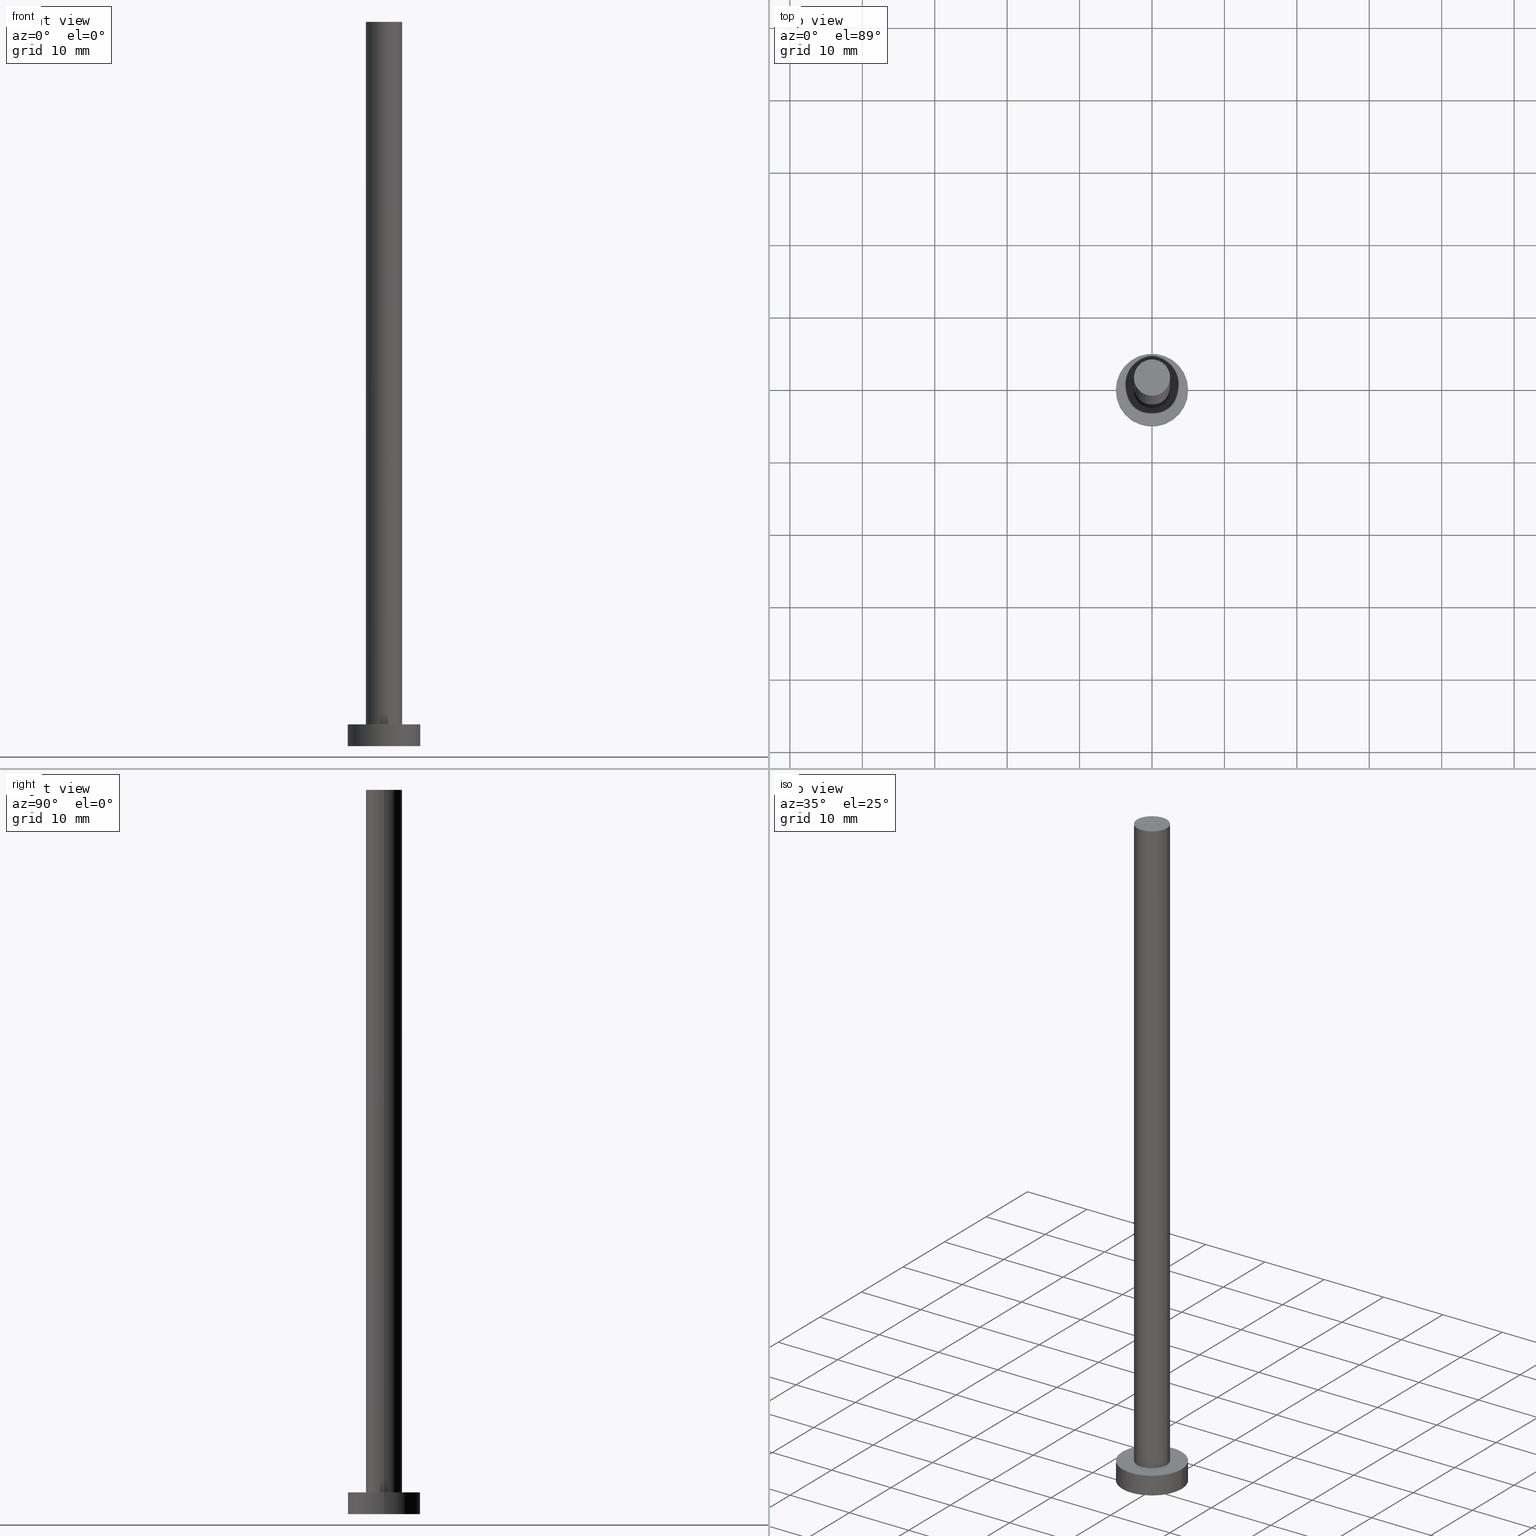
[diagram: canonical four-view strip — front | top / right | iso, engineering-drawing reading convention]
A machine part, canonical four-view strip (front | top / right | iso — engineering-drawing reading convention). The complete STEP part file that produces these views, byte-faithful:
ISO-10303-21;
HEADER;
FILE_DESCRIPTION (( 'STEP AP203' ),
    '1' );
FILE_NAME ('2ddc.STEP',
    '2023-02-12T12:31:39',
    ( '' ),
    ( '' ),
    'SwSTEP 2.0',
    'SolidWorks 2019',
    '' );
FILE_SCHEMA (( 'CONFIG_CONTROL_DESIGN' ));
ENDSEC;

DATA;
#1 =( LENGTH_UNIT ( ) NAMED_UNIT ( * ) SI_UNIT ( .MILLI., .METRE. ) );
#2 = DIRECTION ( 'NONE',  ( 0.000000000000000000, 0.000000000000000000, 1.000000000000000000 ) ) ;
#3 = CYLINDRICAL_SURFACE ( 'NONE', #50, 2.500000000000000000 ) ;
#4 = PERSON_AND_ORGANIZATION ( #63, #224 ) ;
#5 = AXIS2_PLACEMENT_3D ( 'NONE', #132, #152, #153 ) ;
#6 = CC_DESIGN_PERSON_AND_ORGANIZATION_ASSIGNMENT ( #79, #237, ( #104 ) ) ;
#7 = ORIENTED_EDGE ( 'NONE', *, *, #60, .F. ) ;
#8 = VERTEX_POINT ( 'NONE', #151 ) ;
#9 = APPROVAL_PERSON_ORGANIZATION ( #4, #133, #168 ) ;
#10 = ORIENTED_EDGE ( 'NONE', *, *, #115, .T. ) ;
#11 = DIRECTION ( 'NONE',  ( -0.000000000000000000, -0.000000000000000000, -1.000000000000000000 ) ) ;
#12 = VERTEX_POINT ( 'NONE', #169 ) ;
#13 = CC_DESIGN_APPROVAL ( #181, ( #70 ) ) ;
#14 = EDGE_CURVE ( 'NONE', #107, #226, #69, .T. ) ;
#15 = EDGE_LOOP ( 'NONE', ( #202, #206 ) ) ;
#16 = CC_DESIGN_APPROVAL ( #133, ( #104 ) ) ;
#17 = MECHANICAL_CONTEXT ( 'NONE', #212, 'mechanical' ) ;
#18 = APPROVAL_STATUS ( 'not_yet_approved' ) ;
#19 = CARTESIAN_POINT ( 'NONE',  ( 0.000000000000000000, 0.000000000000000000, 3.000000000000000000 ) ) ;
#20 = FACE_BOUND ( 'NONE', #219, .T. ) ;
#21 = DIRECTION ( 'NONE',  ( 0.000000000000000000, 0.000000000000000000, 1.000000000000000000 ) ) ;
#22 = DIRECTION ( 'NONE',  ( 1.000000000000000000, 0.000000000000000000, -0.000000000000000000 ) ) ;
#23 = ORIENTED_EDGE ( 'NONE', *, *, #91, .F. ) ;
#24 = CIRCLE ( 'NONE', #5, 2.500000000000000000 ) ;
#25 = DIRECTION ( 'NONE',  ( 0.000000000000000000, 0.000000000000000000, 1.000000000000000000 ) ) ;
#26 = EDGE_LOOP ( 'NONE', ( #239, #154 ) ) ;
#27 =( NAMED_UNIT ( * ) PLANE_ANGLE_UNIT ( ) SI_UNIT ( $, .RADIAN. ) );
#28 = AXIS2_PLACEMENT_3D ( 'NONE', #148, #25, #110 ) ;
#29 = CARTESIAN_POINT ( 'NONE',  ( 2.500000000000000000, 3.061616997868382648E-16, 100.0000000000000000 ) ) ;
#30 = ORIENTED_EDGE ( 'NONE', *, *, #232, .T. ) ;
#31 = DIRECTION ( 'NONE',  ( -0.000000000000000000, -0.000000000000000000, -1.000000000000000000 ) ) ;
#32 = CARTESIAN_POINT ( 'NONE',  ( 2.500000000000000000, 3.061616997868382648E-16, 100.0000000000000000 ) ) ;
#33 = EDGE_CURVE ( 'NONE', #75, #72, #71, .T. ) ;
#34 = APPLICATION_PROTOCOL_DEFINITION ( 'international standard', 'config_control_design', 1994, #49 ) ;
#35 = CALENDAR_DATE ( 2023, 12, 2 ) ;
#36 = CC_DESIGN_PERSON_AND_ORGANIZATION_ASSIGNMENT ( #184, #254, ( #104 ) ) ;
#37 = CARTESIAN_POINT ( 'NONE',  ( 0.000000000000000000, 0.000000000000000000, 100.0000000000000000 ) ) ;
#38 = CC_DESIGN_SECURITY_CLASSIFICATION ( #70, ( #104 ) ) ;
#39 = PERSON_AND_ORGANIZATION ( #63, #224 ) ;
#40 = CALENDAR_DATE ( 2023, 12, 2 ) ;
#41 = VECTOR ( 'NONE', #11, 1000.000000000000000 ) ;
#42 = PLANE ( 'NONE',  #28 ) ;
#43 = ORIENTED_EDGE ( 'NONE', *, *, #77, .F. ) ;
#44 = VECTOR ( 'NONE', #211, 1000.000000000000000 ) ;
#45 = AXIS2_PLACEMENT_3D ( 'NONE', #131, #221, #85 ) ;
#46 = CARTESIAN_POINT ( 'NONE',  ( -5.000000000000000000, 0.000000000000000000, 3.000000000000000000 ) ) ;
#47 = EDGE_CURVE ( 'NONE', #177, #72, #64, .T. ) ;
#48 = ADVANCED_BREP_SHAPE_REPRESENTATION ( '2ddc', ( #209, #243 ), #134 ) ;
#49 = APPLICATION_CONTEXT ( 'configuration controlled 3d designs of mechanical parts and assemblies' ) ;
#50 = AXIS2_PLACEMENT_3D ( 'NONE', #37, #54, #142 ) ;
#51 = EDGE_LOOP ( 'NONE', ( #43, #160, #170, #109 ) ) ;
#52 = APPROVAL_DATE_TIME ( #97, #66 ) ;
#53 = CARTESIAN_POINT ( 'NONE',  ( 5.000000000000000000, 6.123233995736766282E-16, 3.000000000000000000 ) ) ;
#54 = DIRECTION ( 'NONE',  ( -0.000000000000000000, -0.000000000000000000, -1.000000000000000000 ) ) ;
#55 = DATE_AND_TIME ( #127, #138 ) ;
#56 = FACE_OUTER_BOUND ( 'NONE', #201, .T. ) ;
#57 = PERSON_AND_ORGANIZATION_ROLE ( 'classification_officer' ) ;
#58 = ADVANCED_FACE ( 'NONE', ( #140 ), #93, .T. ) ;
#59 = ORIENTED_EDGE ( 'NONE', *, *, #47, .F. ) ;
#60 = EDGE_CURVE ( 'NONE', #12, #177, #95, .T. ) ;
#61 = ORIENTED_EDGE ( 'NONE', *, *, #33, .T. ) ;
#62 = CARTESIAN_POINT ( 'NONE',  ( -5.000000000000000000, 0.000000000000000000, 0.000000000000000000 ) ) ;
#63 = PERSON ( 'NEUR�EN�', 'NEUR�EN�', 'NEUR�EN�', ('NEUR�EN�'), ('NEUR�EN�'), ('NEUR�EN�') ) ;
#64 = CIRCLE ( 'NONE', #186, 2.500000000000000000 ) ;
#65 = APPROVAL_ROLE ( '' ) ;
#66 = APPROVAL ( #18, 'NEUR�EN�' ) ;
#67 = ORIENTED_EDGE ( 'NONE', *, *, #60, .T. ) ;
#68 = AXIS2_PLACEMENT_3D ( 'NONE', #214, #102, #123 ) ;
#69 = LINE ( 'NONE', #46, #44 ) ;
#70 = SECURITY_CLASSIFICATION ( '', '', #234 ) ;
#71 = LINE ( 'NONE', #29, #41 ) ;
#72 = VERTEX_POINT ( 'NONE', #225 ) ;
#73 = PERSON_AND_ORGANIZATION_ROLE ( 'design_owner' ) ;
#74 = DIRECTION ( 'NONE',  ( 0.000000000000000000, 0.000000000000000000, 1.000000000000000000 ) ) ;
#75 = VERTEX_POINT ( 'NONE', #32 ) ;
#76 = LOCAL_TIME ( 13, 31, 39.00000000000000000, #198 ) ;
#77 = EDGE_CURVE ( 'NONE', #157, #107, #84, .T. ) ;
#78 = AXIS2_PLACEMENT_3D ( 'NONE', #129, #126, #231 ) ;
#79 = PERSON_AND_ORGANIZATION ( #63, #224 ) ;
#80 = APPROVAL_PERSON_ORGANIZATION ( #94, #66, #139 ) ;
#81 = CYLINDRICAL_SURFACE ( 'NONE', #187, 2.500000000000000000 ) ;
#82 = DIRECTION ( 'NONE',  ( 1.000000000000000000, 0.000000000000000000, 0.000000000000000000 ) ) ;
#83 = COORDINATED_UNIVERSAL_TIME_OFFSET ( 1, 0, .AHEAD. ) ;
#84 = CIRCLE ( 'NONE', #101, 5.000000000000000000 ) ;
#85 = DIRECTION ( 'NONE',  ( 1.000000000000000000, 0.000000000000000000, 0.000000000000000000 ) ) ;
#86 = ORIENTED_EDGE ( 'NONE', *, *, #14, .T. ) ;
#87 = FACE_OUTER_BOUND ( 'NONE', #173, .T. ) ;
#88 = ORIENTED_EDGE ( 'NONE', *, *, #47, .T. ) ;
#89 = EDGE_CURVE ( 'NONE', #72, #177, #218, .T. ) ;
#90 = CARTESIAN_POINT ( 'NONE',  ( -2.500000000000000000, 0.000000000000000000, 3.000000000000000000 ) ) ;
#91 = EDGE_CURVE ( 'NONE', #157, #8, #120, .T. ) ;
#92 = DATE_AND_TIME ( #174, #161 ) ;
#93 = CYLINDRICAL_SURFACE ( 'NONE', #250, 5.000000000000000000 ) ;
#94 = PERSON_AND_ORGANIZATION ( #63, #224 ) ;
#95 = LINE ( 'NONE', #205, #194 ) ;
#96 = APPLICATION_PROTOCOL_DEFINITION ( 'international standard', 'config_control_design', 1994, #212 ) ;
#97 = DATE_AND_TIME ( #159, #98 ) ;
#98 = LOCAL_TIME ( 13, 31, 39.00000000000000000, #190 ) ;
#99 = PERSON_AND_ORGANIZATION_ROLE ( 'creator' ) ;
#100 = CARTESIAN_POINT ( 'NONE',  ( 0.000000000000000000, 0.000000000000000000, 0.000000000000000000 ) ) ;
#101 = AXIS2_PLACEMENT_3D ( 'NONE', #195, #74, #118 ) ;
#102 = DIRECTION ( 'NONE',  ( -0.000000000000000000, -0.000000000000000000, -1.000000000000000000 ) ) ;
#103 = CIRCLE ( 'NONE', #252, 5.000000000000000000 ) ;
#104 = PRODUCT_DEFINITION_FORMATION_WITH_SPECIFIED_SOURCE ( 'LIBOVOLN�', '', #228, .NOT_KNOWN. ) ;
#105 = ADVANCED_FACE ( 'NONE', ( #125 ), #253, .T. ) ;
#106 = SHAPE_DEFINITION_REPRESENTATION ( #251, #48 ) ;
#107 = VERTEX_POINT ( 'NONE', #196 ) ;
#108 = ADVANCED_FACE ( 'NONE', ( #20, #222 ), #113, .T. ) ;
#109 = ORIENTED_EDGE ( 'NONE', *, *, #14, .F. ) ;
#110 = DIRECTION ( 'NONE',  ( 1.000000000000000000, 0.000000000000000000, -0.000000000000000000 ) ) ;
#111 = ORIENTED_EDGE ( 'NONE', *, *, #33, .F. ) ;
#112 = AXIS2_PLACEMENT_3D ( 'NONE', #163, #233, #235 ) ;
#113 = PLANE ( 'NONE',  #199 ) ;
#114 = COORDINATED_UNIVERSAL_TIME_OFFSET ( 1, 0, .AHEAD. ) ;
#115 = EDGE_CURVE ( 'NONE', #75, #12, #241, .T. ) ;
#116 = ORIENTED_EDGE ( 'NONE', *, *, #89, .F. ) ;
#117 = EDGE_LOOP ( 'NONE', ( #23, #166, #86, #175 ) ) ;
#118 = DIRECTION ( 'NONE',  ( 1.000000000000000000, 0.000000000000000000, 0.000000000000000000 ) ) ;
#119 = CC_DESIGN_DATE_AND_TIME_ASSIGNMENT ( #216, #242, ( #70 ) ) ;
#120 = LINE ( 'NONE', #229, #155 ) ;
#121 = DIRECTION ( 'NONE',  ( 0.000000000000000000, 0.000000000000000000, 1.000000000000000000 ) ) ;
#122 = PRODUCT_DEFINITION ( 'NEZN�M�', '', #104, #137 ) ;
#123 = DIRECTION ( 'NONE',  ( -1.000000000000000000, 0.000000000000000000, 0.000000000000000000 ) ) ;
#124 = APPROVAL_DATE_TIME ( #55, #133 ) ;
#125 = FACE_OUTER_BOUND ( 'NONE', #51, .T. ) ;
#126 = DIRECTION ( 'NONE',  ( 0.000000000000000000, 0.000000000000000000, 1.000000000000000000 ) ) ;
#127 = CALENDAR_DATE ( 2023, 12, 2 ) ;
#128 = CLOSED_SHELL ( 'NONE', ( #162, #105, #58, #108, #249, #167, #204 ) ) ;
#129 = CARTESIAN_POINT ( 'NONE',  ( 0.000000000000000000, 0.000000000000000000, 100.0000000000000000 ) ) ;
#130 = DIRECTION ( 'NONE',  ( 1.000000000000000000, 0.000000000000000000, 0.000000000000000000 ) ) ;
#131 = CARTESIAN_POINT ( 'NONE',  ( 0.000000000000000000, 0.000000000000000000, 0.000000000000000000 ) ) ;
#132 = CARTESIAN_POINT ( 'NONE',  ( 0.000000000000000000, 0.000000000000000000, 100.0000000000000000 ) ) ;
#133 = APPROVAL ( #147, 'NEUR�EN�' ) ;
#134 =( GEOMETRIC_REPRESENTATION_CONTEXT ( 3 ) GLOBAL_UNCERTAINTY_ASSIGNED_CONTEXT ( ( #245 ) ) GLOBAL_UNIT_ASSIGNED_CONTEXT ( ( #1, #27, #178 ) ) REPRESENTATION_CONTEXT ( 'NONE', 'WORKASPACE' ) );
#135 = FACE_OUTER_BOUND ( 'NONE', #26, .T. ) ;
#136 = EDGE_LOOP ( 'NONE', ( #111, #213, #67, #88 ) ) ;
#137 = DESIGN_CONTEXT ( 'detailed design', #49, 'design' ) ;
#138 = LOCAL_TIME ( 13, 31, 39.00000000000000000, #83 ) ;
#139 = APPROVAL_ROLE ( '' ) ;
#140 = FACE_OUTER_BOUND ( 'NONE', #117, .T. ) ;
#141 = CARTESIAN_POINT ( 'NONE',  ( 0.000000000000000000, 0.000000000000000000, 3.000000000000000000 ) ) ;
#142 = DIRECTION ( 'NONE',  ( -1.000000000000000000, 0.000000000000000000, 0.000000000000000000 ) ) ;
#143 = DIRECTION ( 'NONE',  ( 0.000000000000000000, 0.000000000000000000, 1.000000000000000000 ) ) ;
#144 = PRODUCT_RELATED_PRODUCT_CATEGORY ( 'detail', '', ( #228 ) ) ;
#145 = DATE_AND_TIME ( #40, #197 ) ;
#146 = CARTESIAN_POINT ( 'NONE',  ( 0.000000000000000000, 0.000000000000000000, 100.0000000000000000 ) ) ;
#147 = APPROVAL_STATUS ( 'not_yet_approved' ) ;
#148 = CARTESIAN_POINT ( 'NONE',  ( 0.000000000000000000, 0.000000000000000000, 0.000000000000000000 ) ) ;
#149 = PERSON_AND_ORGANIZATION ( #63, #224 ) ;
#150 = AXIS2_PLACEMENT_3D ( 'NONE', #171, #240, #22 ) ;
#151 = CARTESIAN_POINT ( 'NONE',  ( 5.000000000000000000, 6.123233995736766282E-16, 0.000000000000000000 ) ) ;
#152 = DIRECTION ( 'NONE',  ( 0.000000000000000000, 0.000000000000000000, 1.000000000000000000 ) ) ;
#153 = DIRECTION ( 'NONE',  ( 1.000000000000000000, 0.000000000000000000, 0.000000000000000000 ) ) ;
#154 = ORIENTED_EDGE ( 'NONE', *, *, #193, .F. ) ;
#155 = VECTOR ( 'NONE', #255, 1000.000000000000000 ) ;
#156 = ORIENTED_EDGE ( 'NONE', *, *, #89, .T. ) ;
#157 = VERTEX_POINT ( 'NONE', #53 ) ;
#158 = EDGE_CURVE ( 'NONE', #226, #8, #217, .T. ) ;
#159 = CALENDAR_DATE ( 2023, 12, 2 ) ;
#160 = ORIENTED_EDGE ( 'NONE', *, *, #91, .T. ) ;
#161 = LOCAL_TIME ( 13, 31, 39.00000000000000000, #114 ) ;
#162 = ADVANCED_FACE ( 'NONE', ( #56 ), #3, .T. ) ;
#163 = CARTESIAN_POINT ( 'NONE',  ( 0.000000000000000000, 0.000000000000000000, 0.000000000000000000 ) ) ;
#164 = EDGE_CURVE ( 'NONE', #107, #157, #103, .T. ) ;
#165 = DIRECTION ( 'NONE',  ( -1.000000000000000000, 0.000000000000000000, 0.000000000000000000 ) ) ;
#166 = ORIENTED_EDGE ( 'NONE', *, *, #164, .F. ) ;
#167 = ADVANCED_FACE ( 'NONE', ( #210 ), #81, .T. ) ;
#168 = APPROVAL_ROLE ( '' ) ;
#169 = CARTESIAN_POINT ( 'NONE',  ( -2.500000000000000000, 0.000000000000000000, 100.0000000000000000 ) ) ;
#170 = ORIENTED_EDGE ( 'NONE', *, *, #193, .T. ) ;
#171 = CARTESIAN_POINT ( 'NONE',  ( 0.000000000000000000, 0.000000000000000000, 100.0000000000000000 ) ) ;
#172 = ORIENTED_EDGE ( 'NONE', *, *, #115, .F. ) ;
#173 = EDGE_LOOP ( 'NONE', ( #30, #10 ) ) ;
#174 = CALENDAR_DATE ( 2023, 12, 2 ) ;
#175 = ORIENTED_EDGE ( 'NONE', *, *, #158, .T. ) ;
#176 = CC_DESIGN_PERSON_AND_ORGANIZATION_ASSIGNMENT ( #192, #99, ( #122 ) ) ;
#177 = VERTEX_POINT ( 'NONE', #90 ) ;
#178 =( NAMED_UNIT ( * ) SI_UNIT ( $, .STERADIAN. ) SOLID_ANGLE_UNIT ( ) );
#179 = DIRECTION ( 'NONE',  ( -0.000000000000000000, -0.000000000000000000, -1.000000000000000000 ) ) ;
#180 = CARTESIAN_POINT ( 'NONE',  ( 0.000000000000000000, 0.000000000000000000, 3.000000000000000000 ) ) ;
#181 = APPROVAL ( #188, 'NEUR�EN�' ) ;
#182 = COORDINATED_UNIVERSAL_TIME_OFFSET ( 1, 0, .AHEAD. ) ;
#183 = DIRECTION ( 'NONE',  ( 1.000000000000000000, 0.000000000000000000, -0.000000000000000000 ) ) ;
#184 = PERSON_AND_ORGANIZATION ( #63, #224 ) ;
#185 = CC_DESIGN_DATE_AND_TIME_ASSIGNMENT ( #145, #236, ( #122 ) ) ;
#186 = AXIS2_PLACEMENT_3D ( 'NONE', #141, #143, #207 ) ;
#187 = AXIS2_PLACEMENT_3D ( 'NONE', #146, #31, #165 ) ;
#188 = APPROVAL_STATUS ( 'not_yet_approved' ) ;
#189 = CARTESIAN_POINT ( 'NONE',  ( 0.000000000000000000, 0.000000000000000000, 3.000000000000000000 ) ) ;
#190 = COORDINATED_UNIVERSAL_TIME_OFFSET ( 1, 0, .AHEAD. ) ;
#191 = CARTESIAN_POINT ( 'NONE',  ( 0.000000000000000000, 0.000000000000000000, 3.000000000000000000 ) ) ;
#192 = PERSON_AND_ORGANIZATION ( #63, #224 ) ;
#193 = EDGE_CURVE ( 'NONE', #8, #226, #208, .T. ) ;
#194 = VECTOR ( 'NONE', #248, 1000.000000000000000 ) ;
#195 = CARTESIAN_POINT ( 'NONE',  ( 0.000000000000000000, 0.000000000000000000, 3.000000000000000000 ) ) ;
#196 = CARTESIAN_POINT ( 'NONE',  ( -5.000000000000000000, 0.000000000000000000, 3.000000000000000000 ) ) ;
#197 = LOCAL_TIME ( 13, 31, 39.00000000000000000, #182 ) ;
#198 = COORDINATED_UNIVERSAL_TIME_OFFSET ( 1, 0, .AHEAD. ) ;
#199 = AXIS2_PLACEMENT_3D ( 'NONE', #189, #230, #183 ) ;
#200 = CC_DESIGN_PERSON_AND_ORGANIZATION_ASSIGNMENT ( #149, #57, ( #70 ) ) ;
#201 = EDGE_LOOP ( 'NONE', ( #172, #61, #156, #7 ) ) ;
#202 = ORIENTED_EDGE ( 'NONE', *, *, #164, .T. ) ;
#203 = PERSON_AND_ORGANIZATION ( #63, #224 ) ;
#204 = ADVANCED_FACE ( 'NONE', ( #87 ), #215, .T. ) ;
#205 = CARTESIAN_POINT ( 'NONE',  ( -2.500000000000000000, 0.000000000000000000, 100.0000000000000000 ) ) ;
#206 = ORIENTED_EDGE ( 'NONE', *, *, #77, .T. ) ;
#207 = DIRECTION ( 'NONE',  ( 1.000000000000000000, 0.000000000000000000, 0.000000000000000000 ) ) ;
#208 = CIRCLE ( 'NONE', #45, 5.000000000000000000 ) ;
#209 = MANIFOLD_SOLID_BREP ( 'P�idat vysunut�m3', #128 ) ;
#210 = FACE_OUTER_BOUND ( 'NONE', #136, .T. ) ;
#211 = DIRECTION ( 'NONE',  ( -0.000000000000000000, -0.000000000000000000, -1.000000000000000000 ) ) ;
#212 = APPLICATION_CONTEXT ( 'configuration controlled 3d designs of mechanical parts and assemblies' ) ;
#213 = ORIENTED_EDGE ( 'NONE', *, *, #232, .F. ) ;
#214 = CARTESIAN_POINT ( 'NONE',  ( 0.000000000000000000, 0.000000000000000000, 3.000000000000000000 ) ) ;
#215 = PLANE ( 'NONE',  #150 ) ;
#216 = DATE_AND_TIME ( #35, #76 ) ;
#217 = CIRCLE ( 'NONE', #112, 5.000000000000000000 ) ;
#218 = CIRCLE ( 'NONE', #223, 2.500000000000000000 ) ;
#219 = EDGE_LOOP ( 'NONE', ( #59, #116 ) ) ;
#220 = CC_DESIGN_PERSON_AND_ORGANIZATION_ASSIGNMENT ( #39, #73, ( #228 ) ) ;
#221 = DIRECTION ( 'NONE',  ( 0.000000000000000000, 0.000000000000000000, 1.000000000000000000 ) ) ;
#222 = FACE_OUTER_BOUND ( 'NONE', #15, .T. ) ;
#223 = AXIS2_PLACEMENT_3D ( 'NONE', #191, #121, #227 ) ;
#224 = ORGANIZATION ( 'NEUR�EN�', 'NEUR�EN�', '' ) ;
#225 = CARTESIAN_POINT ( 'NONE',  ( 2.500000000000000000, 3.061616997868382648E-16, 3.000000000000000000 ) ) ;
#226 = VERTEX_POINT ( 'NONE', #62 ) ;
#227 = DIRECTION ( 'NONE',  ( 1.000000000000000000, 0.000000000000000000, 0.000000000000000000 ) ) ;
#228 = PRODUCT ( '2ddc', '2ddc', '', ( #17 ) ) ;
#229 = CARTESIAN_POINT ( 'NONE',  ( 5.000000000000000000, 6.123233995736766282E-16, 3.000000000000000000 ) ) ;
#230 = DIRECTION ( 'NONE',  ( 0.000000000000000000, 0.000000000000000000, 1.000000000000000000 ) ) ;
#231 = DIRECTION ( 'NONE',  ( 1.000000000000000000, 0.000000000000000000, 0.000000000000000000 ) ) ;
#232 = EDGE_CURVE ( 'NONE', #12, #75, #24, .T. ) ;
#233 = DIRECTION ( 'NONE',  ( 0.000000000000000000, 0.000000000000000000, 1.000000000000000000 ) ) ;
#234 = SECURITY_CLASSIFICATION_LEVEL ( 'unclassified' ) ;
#235 = DIRECTION ( 'NONE',  ( 1.000000000000000000, 0.000000000000000000, 0.000000000000000000 ) ) ;
#236 = DATE_TIME_ROLE ( 'creation_date' ) ;
#237 = PERSON_AND_ORGANIZATION_ROLE ( 'design_supplier' ) ;
#238 = CC_DESIGN_APPROVAL ( #66, ( #122 ) ) ;
#239 = ORIENTED_EDGE ( 'NONE', *, *, #158, .F. ) ;
#240 = DIRECTION ( 'NONE',  ( 0.000000000000000000, 0.000000000000000000, 1.000000000000000000 ) ) ;
#241 = CIRCLE ( 'NONE', #78, 2.500000000000000000 ) ;
#242 = DATE_TIME_ROLE ( 'classification_date' ) ;
#243 = AXIS2_PLACEMENT_3D ( 'NONE', #100, #21, #82 ) ;
#244 = APPROVAL_DATE_TIME ( #92, #181 ) ;
#245 = UNCERTAINTY_MEASURE_WITH_UNIT (LENGTH_MEASURE( 1.000000000000000082E-05 ), #1, 'distance_accuracy_value', 'NONE');
#246 = APPROVAL_PERSON_ORGANIZATION ( #203, #181, #65 ) ;
#247 = DIRECTION ( 'NONE',  ( -1.000000000000000000, 0.000000000000000000, 0.000000000000000000 ) ) ;
#248 = DIRECTION ( 'NONE',  ( -0.000000000000000000, -0.000000000000000000, -1.000000000000000000 ) ) ;
#249 = ADVANCED_FACE ( 'NONE', ( #135 ), #42, .F. ) ;
#250 = AXIS2_PLACEMENT_3D ( 'NONE', #180, #179, #247 ) ;
#251 = PRODUCT_DEFINITION_SHAPE ( 'NONE', 'NONE',  #122 ) ;
#252 = AXIS2_PLACEMENT_3D ( 'NONE', #19, #2, #130 ) ;
#253 = CYLINDRICAL_SURFACE ( 'NONE', #68, 5.000000000000000000 ) ;
#254 = PERSON_AND_ORGANIZATION_ROLE ( 'creator' ) ;
#255 = DIRECTION ( 'NONE',  ( -0.000000000000000000, -0.000000000000000000, -1.000000000000000000 ) ) ;
ENDSEC;
END-ISO-10303-21;
